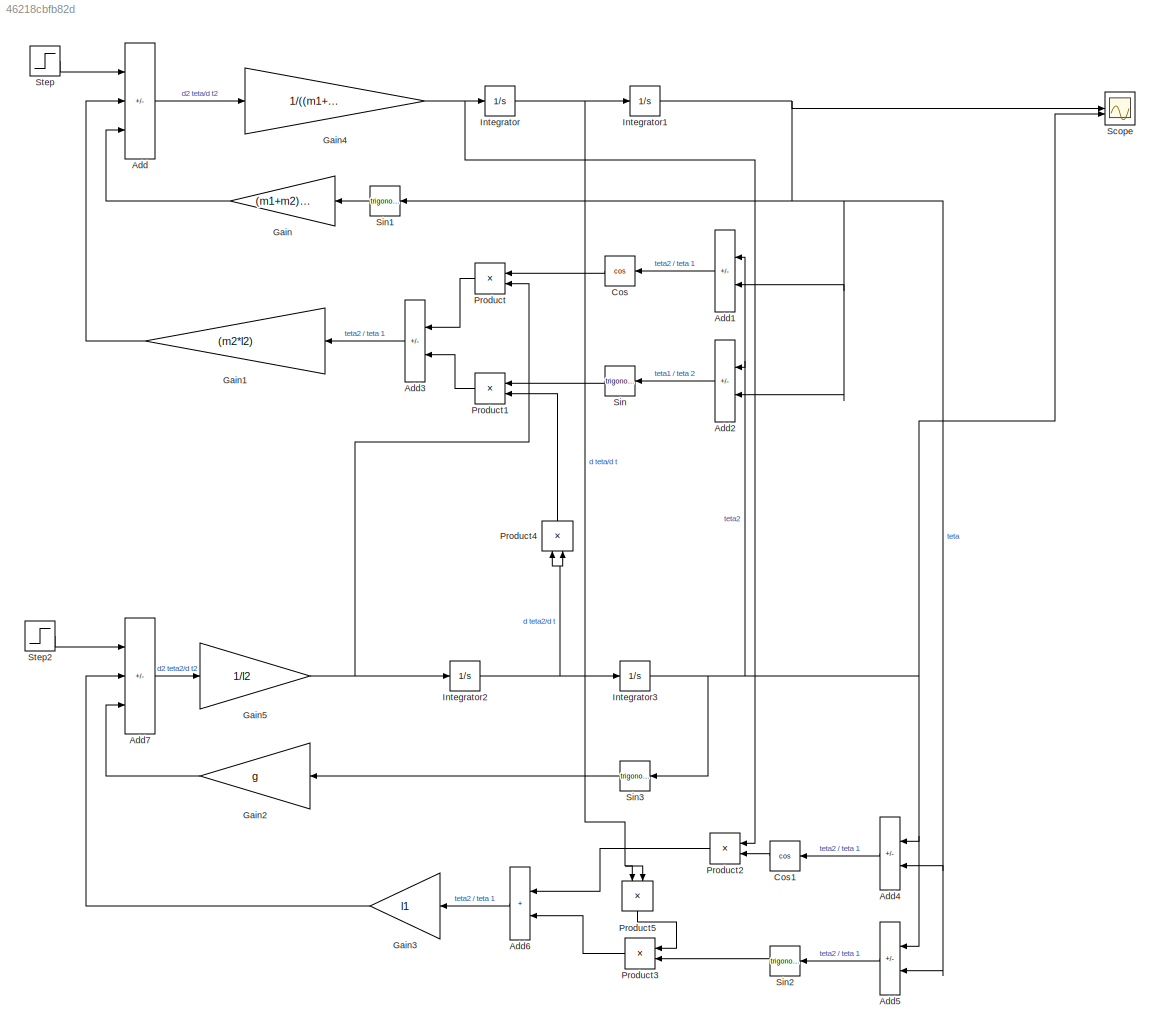
MODEL slx_46218cbfb82d
KIND model
CONFIG AbsTol = auto
CONFIG EnableMultiTasking = off
CONFIG FixedStep = 0.02
CONFIG MaxStep = auto
CONFIG MinStep = auto
CONFIG RelTol = 1e-3
CONFIG SampleTimeConstraint = Unconstrained
CONFIG SolverName = ode4
CONFIG StartTime = 0.0
CONFIG StopTime = 5
BLOCK [Sum] Add
  IconShape = rectangular
  Inputs = +--
BLOCK [Sum] Add1
  IconShape = rectangular
  Inputs = +-
  NameLocation = top
BLOCK [Sum] Add2
  IconShape = rectangular
  Inputs = +-
  NameLocation = top
BLOCK [Sum] Add3
  IconShape = rectangular
  Inputs = +-
  NameLocation = top
BLOCK [Sum] Add4
  IconShape = rectangular
  Inputs = +-
  NameLocation = top
BLOCK [Sum] Add5
  IconShape = rectangular
  Inputs = +-
  NameLocation = top
BLOCK [Sum] Add6
  IconShape = rectangular
  NameLocation = top
BLOCK [Sum] Add7
  IconShape = rectangular
  Inputs = +--
BLOCK [Trigonometry] Cos
  NameLocation = top
  Operator = cos
BLOCK [Trigonometry] Cos1
  NameLocation = top
  Operator = cos
BLOCK [Gain] Gain
  Gain = (m1+m2)*g
  NameLocation = top
BLOCK [Gain] Gain1
  Gain = (m2*l2)
  NameLocation = top
BLOCK [Gain] Gain2
  Gain = g
  NameLocation = top
BLOCK [Gain] Gain3
  Gain = l1
  NameLocation = top
BLOCK [Gain] Gain4
  Gain = 1/((m1+m2)*l1)
BLOCK [Gain] Gain5
  Gain = 1/l2
BLOCK [Integrator] Integrator
BLOCK [Integrator] Integrator1
BLOCK [Integrator] Integrator2
BLOCK [Integrator] Integrator3
  InitialCondition = (35*pi)/180
BLOCK [Product] Product
  NameLocation = top
BLOCK [Product] Product1
  NameLocation = top
BLOCK [Product] Product2
  NameLocation = top
BLOCK [Product] Product3
  NameLocation = top
BLOCK [Product] Product4
  NameLocation = right
BLOCK [Product] Product5
  NameLocation = left
BLOCK [Scope] Scope
  Floating = off
  NumInputPorts = 2
  ScopeSpecificationString = Simulink.scopes.TimeScopeBlockCfg('CurrentConfiguration', extmgr.ConfigurationSet(extmgr.Configuration('Core','General UI',true),extmgr.Configuration('Core','Source UI',true),extmgr.Configuration('Sources','WiredSimulink',true),extmgr.Configuration('Visuals','Time Domain',true,'SerializedDisplays',{struct('MinYLimReal','-0.76256','MaxYLimReal','0.76347','YLabelReal','','MinYLimMag','0.00000','MaxY...<+1685ch>
BLOCK [Trigonometry] Sin
  NameLocation = top
BLOCK [Trigonometry] Sin1
  NameLocation = top
BLOCK [Trigonometry] Sin2
  NameLocation = top
BLOCK [Trigonometry] Sin3
  NameLocation = top
BLOCK [Step] Step
  After = 0
  SampleTime = 0
BLOCK [Step] Step2
  After = 0
  SampleTime = 0
LINE Add1:1 -> Cos:1
LINE Add2:1 -> Sin:1
LINE Add3:1 -> Gain1:1
LINE Add4:1 -> Cos1:1
LINE Add5:1 -> Sin2:1
LINE Add6:1 -> Gain3:1
LINE Add7:1 -> Gain5:1
LINE Add:1 -> Gain4:1
LINE Cos1:1 -> Product2:2
LINE Cos:1 -> Product:1
LINE Gain1:1 -> Add:2
LINE Gain2:1 -> Add7:3
LINE Gain3:1 -> Add7:2
NET Gain4:1 -> Integrator:1, Product2:1
NET Gain5:1 -> Integrator2:1, Product:2
LINE Gain:1 -> Add:3
NET Integrator1:1 -> Add1:2, Add2:2, Add4:2, Add5:2, Scope:1, Sin1:1
NET Integrator2:1 -> Integrator3:1, Product4:1, Product4:2
NET Integrator3:1 -> Add1:1, Add2:1, Add4:1, Add5:1, Scope:2, Sin3:1
NET Integrator:1 -> Integrator1:1, Product5:1, Product5:2
LINE Product1:1 -> Add3:2
LINE Product2:1 -> Add6:1
LINE Product3:1 -> Add6:2
LINE Product4:1 -> Product1:2
LINE Product5:1 -> Product3:1
LINE Product:1 -> Add3:1
LINE Sin1:1 -> Gain:1
LINE Sin2:1 -> Product3:2
LINE Sin3:1 -> Gain2:1
LINE Sin:1 -> Product1:1
LINE Step2:1 -> Add7:1
LINE Step:1 -> Add:1
note: NET lines group one-source signal fan-out (src -> all destinations, sorted); 1:1 wires keep LINE
